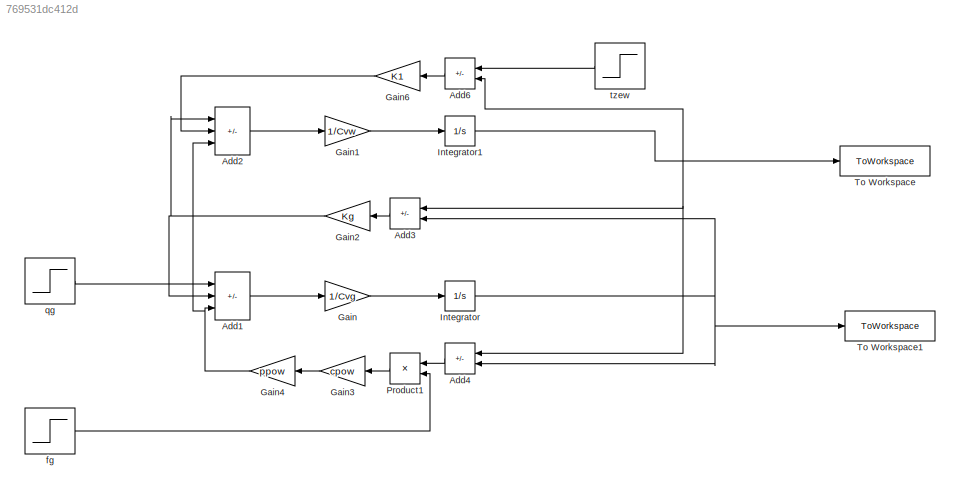
MODEL slx_769531dc412d
KIND model
CONFIG AbsTol = auto
CONFIG EnableMultiTasking = off
CONFIG FixedStep = 50
CONFIG MaxStep = 5
CONFIG MinStep = auto
CONFIG RelTol = 1e-3
CONFIG SampleTimeConstraint = Unconstrained
CONFIG SolverName = VariableStepAuto
CONFIG StartTime = 0.0
CONFIG StopTime = stop_czas
BLOCK [Sum] Add1
  IconShape = rectangular
  Inputs = +--
  Ports = [3, 1]
BLOCK [Sum] Add2
  IconShape = rectangular
  Inputs = +-+
  Ports = [3, 1]
BLOCK [Sum] Add3
  IconShape = rectangular
  Inputs = -+
  Ports = [2, 1]
BLOCK [Sum] Add4
  IconShape = rectangular
  Inputs = -+
  Ports = [2, 1]
BLOCK [Sum] Add6
  IconShape = rectangular
  Inputs = -+
  Ports = [2, 1]
BLOCK [Gain] Gain
  Gain = 1/Cvg
BLOCK [Gain] Gain1
  Gain = 1/Cvw
BLOCK [Gain] Gain2
  Gain = Kg
BLOCK [Gain] Gain3
  Gain = cpow
BLOCK [Gain] Gain4
  Gain = ppow
BLOCK [Gain] Gain6
  Gain = K1
BLOCK [Integrator] Integrator
  InitialCondition = Tg0
  Ports = [1, 1]
BLOCK [Integrator] Integrator1
  InitialCondition = Twew0
  Ports = [1, 1]
BLOCK [Product] Product1
  Ports = [2, 1]
BLOCK [ToWorkspace] To Workspace
  FixptAsFi = on
  MaxDataPoints = inf
  Ports = [1]
  SampleTime = -1
  VariableName = Twew
BLOCK [ToWorkspace] To Workspace1
  FixptAsFi = on
  MaxDataPoints = inf
  Ports = [1]
  SampleTime = -1
  VariableName = Tg
BLOCK [Step] fg
  After = dfg+fg
  Before = fg
  SampleTime = 0
  Time = T
BLOCK [Step] qg
  After = qg+dqg
  Before = qg
  SampleTime = 0
  Time = T
BLOCK [Step] tzew
  After = Tzew+dTzew
  Before = Tzew
  SampleTime = 0
  Time = T
LINE Add1:1 -> Gain:1
LINE Add2:1 -> Gain1:1
LINE Add3:1 -> Gain2:1
LINE Add4:1 -> Product1:1
LINE Add6:1 -> Gain6:1
LINE Gain1:1 -> Integrator1:1
NET Gain2:1 -> Add1:2, Add2:1
LINE Gain3:1 -> Gain4:1
NET Gain4:1 -> Add1:3, Add2:3
LINE Gain6:1 -> Add2:2
LINE Gain:1 -> Integrator:1
NET Integrator1:1 -> Add3:1, Add4:1, Add6:2, To Workspace:1
NET Integrator:1 -> Add3:2, Add4:2, To Workspace1:1
LINE Product1:1 -> Gain3:1
LINE fg:1 -> Product1:2
LINE qg:1 -> Add1:1
LINE tzew:1 -> Add6:1
note: NET lines group one-source signal fan-out (src -> all destinations, sorted); 1:1 wires keep LINE
